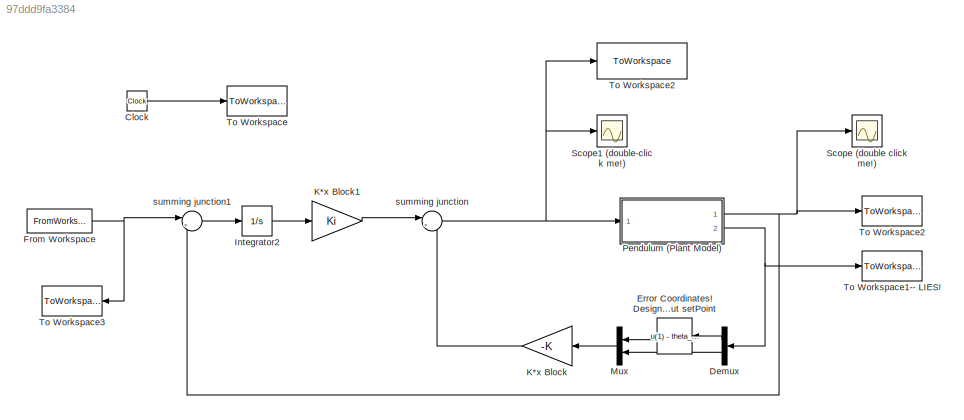
MODEL slx_97ddd9fa3384
KIND model
CONFIG AbsTol = auto
CONFIG EnableMultiTasking = on
CONFIG FixedStep = 1e-3
CONFIG MaxStep = 0.1
CONFIG MinStep = auto
CONFIG RelTol = 1e-3
CONFIG SampleTimeConstraint = Unconstrained
CONFIG Solver = ode45
CONFIG SolverName = ode45
CONFIG StartTime = 0.0
CONFIG StopTime = tend
BLOCK [Clock] Clock
  DisplayTime = on
BLOCK [Demux] Demux
  DisplayOption = bar
  Outputs = 2
  Ports = [1, 2]
BLOCK [Fcn] Error Coordinates! Designed K about setPoint
  Expr = u(1) - theta_setPoint
BLOCK [FromWorkspace] From Workspace
  SampleTime = 0
  VariableName = reference
  ZeroCross = on
BLOCK [Integrator] Integrator2
  Ports = [1, 1]
BLOCK [Gain] K*x Block
  Gain = -K
  Multiplication = Matrix(K*u)
  OutDataTypeStr = Inherit: Inherit via internal rule
  ParamDataTypeStr = Inherit: Inherit via internal rule
  SaturateOnIntegerOverflow = off
BLOCK [Gain] K*x Block1
  Gain = Ki
  Multiplication = Matrix(K*u)
  OutDataTypeStr = Inherit: Inherit via internal rule
  ParamDataTypeStr = Inherit: Inherit via internal rule
  SaturateOnIntegerOverflow = off
BLOCK [Mux] Mux
  DisplayOption = bar
  Inputs = 2
  Ports = [2, 1]
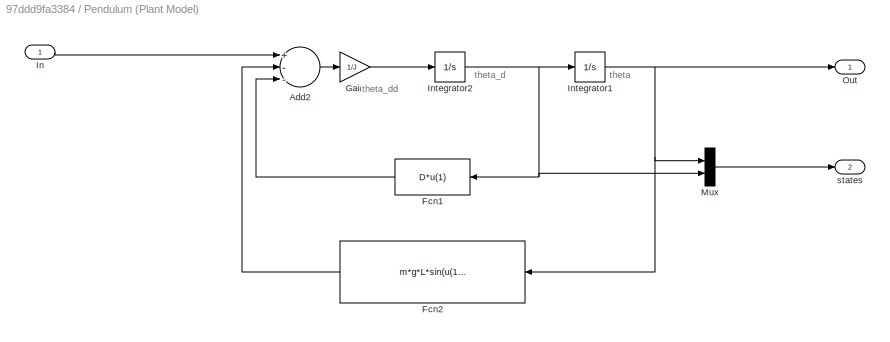
BLOCK [SubSystem] Pendulum (Plant Model) 
  Ports = [1, 2]
  RequestExecContextInheritance = off
BLOCK [Sum] Pendulum (Plant Model) /Add2
  InputSameDT = off
  Inputs = +--
  OutDataTypeStr = Inherit: Inherit via internal rule
  Ports = [3, 1]
  SaturateOnIntegerOverflow = off
BLOCK [Fcn] Pendulum (Plant Model) /Fcn1
  Expr = D*u(1)
BLOCK [Fcn] Pendulum (Plant Model) /Fcn2
  Expr = m*g*L*sin(u(1))/2
BLOCK [Gain] Pendulum (Plant Model) /Gain
  Gain = 1/J
  OutDataTypeStr = Inherit: Inherit via internal rule
  ParamDataTypeStr = Inherit: Inherit via internal rule
  SaturateOnIntegerOverflow = off
BLOCK [Inport] Pendulum (Plant Model) /In
  IconDisplay = Port number
BLOCK [Integrator] Pendulum (Plant Model) /Integrator1
  InitialCondition = theta_0
  Ports = [1, 1]
BLOCK [Integrator] Pendulum (Plant Model) /Integrator2
  Ports = [1, 1]
BLOCK [Mux] Pendulum (Plant Model) /Mux
  DisplayOption = bar
  Inputs = 2
  Ports = [2, 1]
BLOCK [Outport] Pendulum (Plant Model) /Out
  IconDisplay = Port number
BLOCK [Outport] Pendulum (Plant Model) /states
  IconDisplay = Port number
  Port = 2
BLOCK [Scope] Scope (double click me!)
  Floating = off
  NumInputPorts = 1
  Ports = [1]
  ScopeSpecificationString = Simulink.scopes.TimeScopeBlockCfg('CurrentConfiguration', extmgr.ConfigurationSet(extmgr.Configuration('Core','General UI',true),extmgr.Configuration('Core','Source UI',true),extmgr.Configuration('Sources','WiredSimulink',true,'DataLoggingSaveFormat','StructureWithTime','DataLoggingLimitDataPoints',true,'DataLoggingDecimation','1','DataLoggingDecimateData',true),extmgr.Configuration('Visuals','Tim...<+1673ch>
BLOCK [Scope] Scope1 (double-click me!)
  Floating = off
  NumInputPorts = 1
  Ports = [1]
  ScopeSpecificationString = Simulink.scopes.TimeScopeBlockCfg('CurrentConfiguration', extmgr.ConfigurationSet(extmgr.Configuration('Core','General UI',true),extmgr.Configuration('Core','Source UI',true),extmgr.Configuration('Sources','WiredSimulink',true,'DataLoggingVariableName','ScopeData1','DataLoggingSaveFormat','StructureWithTime','DataLoggingLimitDataPoints',true,'DataLoggingDecimation','1','DataLoggingDecimateData',tr...<+1689ch>
BLOCK [ToWorkspace] To Workspace
  MaxDataPoints = inf
  Ports = [1]
  SampleTime = -1
  VariableName = t
BLOCK [ToWorkspace] To Workspace1-- LIES!
  MaxDataPoints = inf
  Ports = [1]
  SampleTime = -1
  VariableName = states
BLOCK [ToWorkspace] To Workspace2
  MaxDataPoints = inf
  Ports = [1]
  SampleTime = -1
  VariableName = y
BLOCK [ToWorkspace] To Workspace2 
  MaxDataPoints = inf
  Ports = [1]
  SampleTime = -1
  VariableName = plantInput
BLOCK [ToWorkspace] To Workspace3
  MaxDataPoints = inf
  Ports = [1]
  SampleTime = -1
  VariableName = command
BLOCK [Sum] summing junction
  IconShape = round
  InputSameDT = off
  Inputs = |++
  OutDataTypeStr = Inherit: Inherit via internal rule
  Ports = [2, 1]
  SaturateOnIntegerOverflow = off
BLOCK [Sum] summing junction1
  IconShape = round
  InputSameDT = off
  Inputs = |+-
  OutDataTypeStr = Inherit: Inherit via internal rule
  Ports = [2, 1]
  SaturateOnIntegerOverflow = off
ANNOTATION Pendulum (Plant Model) : theta
ANNOTATION Pendulum (Plant Model) : theta_d
ANNOTATION Pendulum (Plant Model) : theta_dd
LINE Clock:1 -> To Workspace:1
LINE Demux:1 -> Error Coordinates! Designed K about setPoint:1
LINE Demux:2 -> Mux:2
LINE Error Coordinates! Designed K about setPoint:1 -> Mux:1
NET From Workspace:1 -> To Workspace3:1, summing junction1:1
LINE Integrator2:1 -> K*x Block1:1
LINE K*x Block1:1 -> summing junction:1
LINE K*x Block:1 -> summing junction:2
LINE Mux:1 -> K*x Block:1
LINE Pendulum (Plant Model) /Add2:1 -> Pendulum (Plant Model) /Gain:1
LINE Pendulum (Plant Model) /Fcn1:1 -> Pendulum (Plant Model) /Add2:3
LINE Pendulum (Plant Model) /Fcn2:1 -> Pendulum (Plant Model) /Add2:2
LINE Pendulum (Plant Model) /Gain:1 -> Pendulum (Plant Model) /Integrator2:1
LINE Pendulum (Plant Model) /In:1 -> Pendulum (Plant Model) /Add2:1
NET Pendulum (Plant Model) /Integrator1:1 -> Pendulum (Plant Model) /Fcn2:1, Pendulum (Plant Model) /Mux:1, Pendulum (Plant Model) /Out:1
NET Pendulum (Plant Model) /Integrator2:1 -> Pendulum (Plant Model) /Fcn1:1, Pendulum (Plant Model) /Integrator1:1, Pendulum (Plant Model) /Mux:2
LINE Pendulum (Plant Model) /Mux:1 -> Pendulum (Plant Model) /states:1
NET Pendulum (Plant Model) :1 -> Scope (double click me!):1, To Workspace2:1, summing junction1:2
NET Pendulum (Plant Model) :2 -> Demux:1, To Workspace1-- LIES!:1
LINE summing junction1:1 -> Integrator2:1
NET summing junction:1 -> Pendulum (Plant Model) :1, Scope1 (double-click me!):1, To Workspace2 :1
note: NET lines group one-source signal fan-out (src -> all destinations, sorted); 1:1 wires keep LINE
